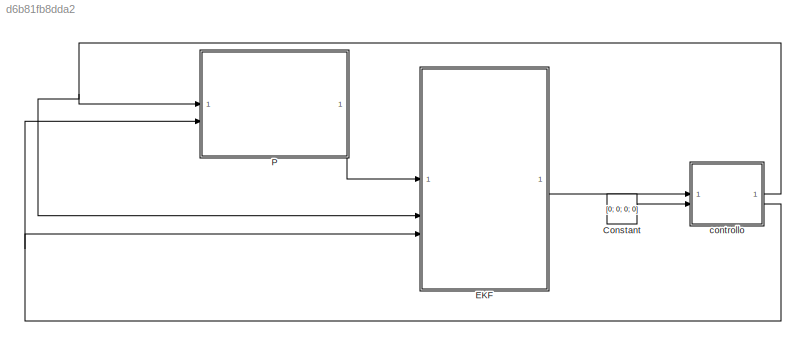
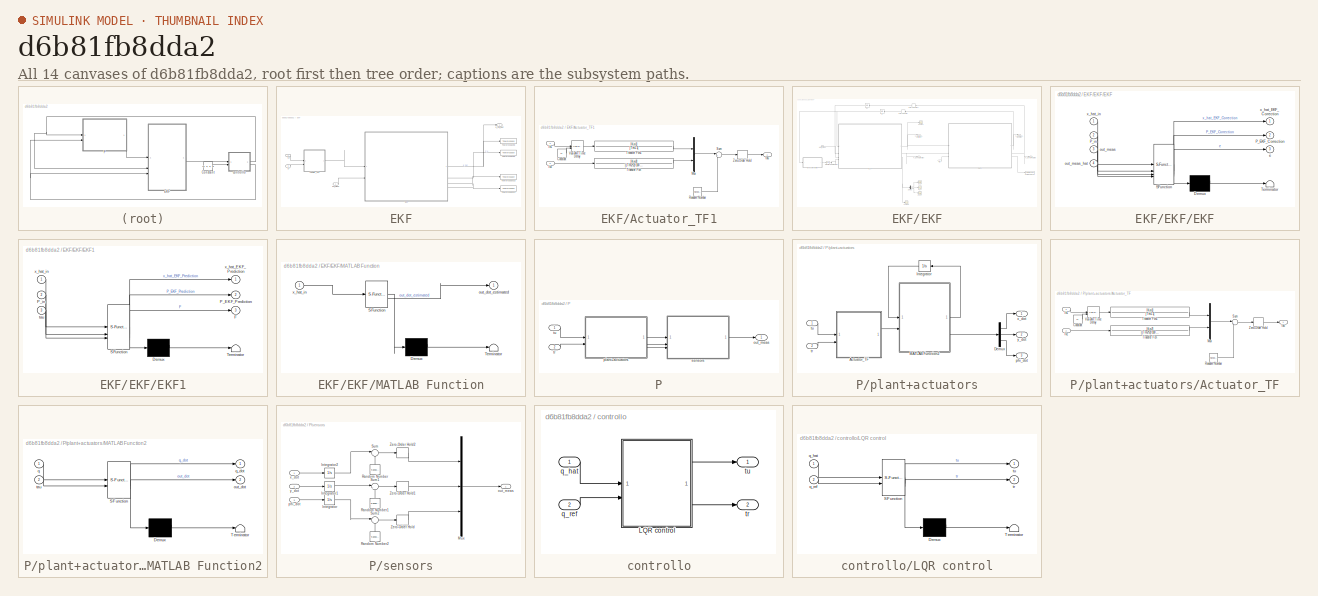
[diagram: thumbnail index - all 14 canvases of the model, root first then tree order]
MODEL slx_d6b81fb8dda2
KIND model
CONFIG AbsTol = auto
CONFIG EnableMultiTasking = off
CONFIG FixedStep = auto
CONFIG MaxStep = 1/f_s
CONFIG MinStep = auto
CONFIG RelTol = 1e-3
CONFIG SampleTimeConstraint = Unconstrained
CONFIG SolverName = VariableStepAuto
CONFIG StartTime = 0.0
CONFIG StopTime = 0.1
BLOCK [Constant] Constant
  Value = [0; 0; 0; 0]
BLOCK [SubSystem] EKF
BLOCK [SubSystem] EKF/Actuator_TF1
BLOCK [Constant] EKF/Actuator_TF1/Constant
  Value = T1
BLOCK [Inport] EKF/Actuator_TF1/In1
BLOCK [Inport] EKF/Actuator_TF1/In2
  Port = 2
BLOCK [Mux] EKF/Actuator_TF1/Mux
  DisplayOption = bar
  Inputs = 2
BLOCK [RandomNumber] EKF/Actuator_TF1/Random Number
  SampleTime = 1/f_s
  Variance = 36
BLOCK [Sum] EKF/Actuator_TF1/Sum
  Inputs = |++
BLOCK [TransferFcn] EKF/Actuator_TF1/Transfer Fcn
  Denominator = [(Tm2^2)/100 (101/100)*Tm2 1]
  Numerator = [Km2]
BLOCK [TransferFcn] EKF/Actuator_TF1/Transfer Fcn1
  Denominator = [Tm1 1]
  Numerator = [Km1]
BLOCK [VariableTransportDelay] EKF/Actuator_TF1/Variable Time Delay
  MaximumDelay = 100
  PadeOrder = 1
BLOCK [ZeroOrderHold] EKF/Actuator_TF1/Zero-Order Hold
  SampleTime = 1/f_s
BLOCK [Outport] EKF/Actuator_TF1/tau
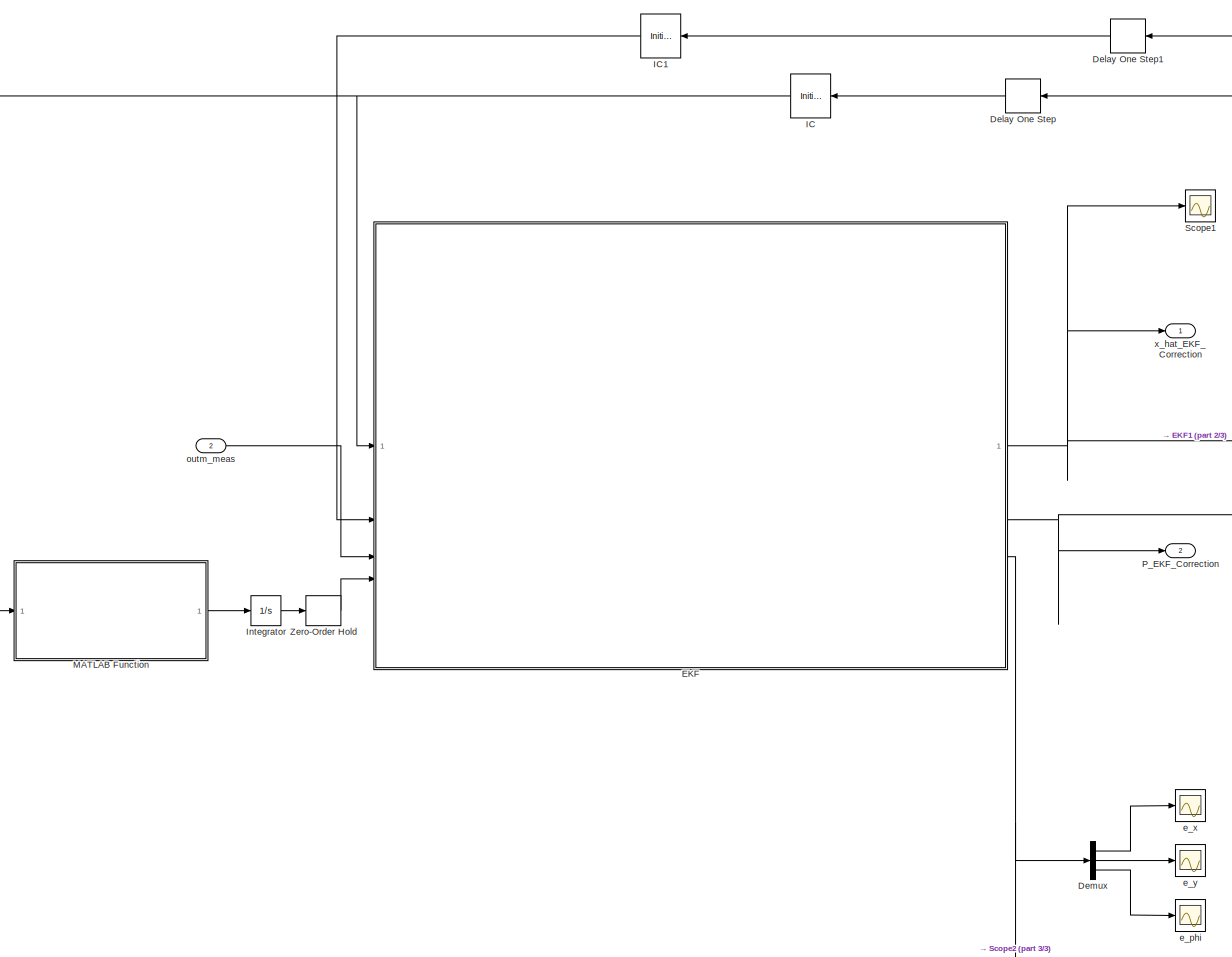
[diagram: EKF/EKF - part 1/3, left side, full height]
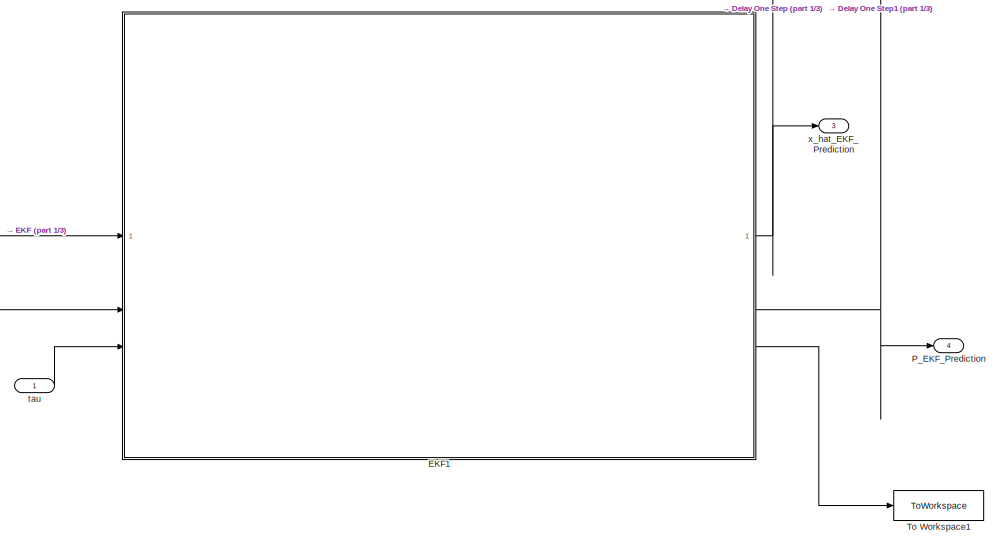
[diagram: EKF/EKF - part 2/3, middle right region]
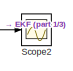
[diagram: EKF/EKF - part 3/3, bottom center region]
BLOCK [SubSystem] EKF/EKF
BLOCK [Delay] EKF/EKF/Delay One Step
  DelayLength = 1
  InputPortMap = u0
  NameLocation = top
BLOCK [Delay] EKF/EKF/Delay One Step1
  DelayLength = 1
  InputPortMap = u0
  NameLocation = top
BLOCK [Demux] EKF/EKF/Demux
  Outputs = 3
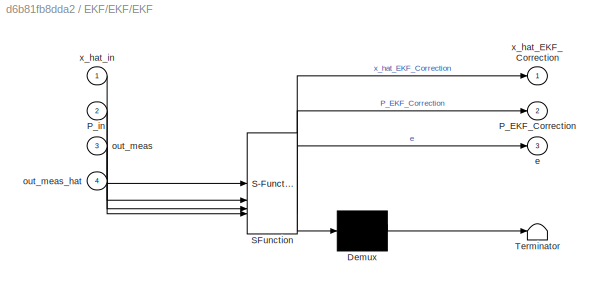
BLOCK [SubSystem] EKF/EKF/EKF
  ErrorFcn = Stateflow.Translate.translate
  PermitHierarchicalResolution = ExplicitOnly
  SFBlockType = MATLAB Function
  TreatAsAtomicUnit = on
BLOCK [Demux] EKF/EKF/EKF/ Demux 
  Outputs = 1
BLOCK [S-Function] EKF/EKF/EKF/ SFunction 
  EnableBusSupport = on
  FunctionName = sf_sfun
  Parameters = R_k,f_s,params
  PortCounts = [4 4]
  SFcnIsStateOwnerBlock = off
  SFunctionDeploymentMode = off
  Tag = Stateflow S-Function 3
BLOCK [Terminator] EKF/EKF/EKF/ Terminator 
BLOCK [Outport] EKF/EKF/EKF/P_EKF_Correction
  Port = 2
BLOCK [Inport] EKF/EKF/EKF/P_in
  Port = 2
BLOCK [Outport] EKF/EKF/EKF/e
  Port = 3
BLOCK [Inport] EKF/EKF/EKF/out_meas
  Port = 3
BLOCK [Inport] EKF/EKF/EKF/out_meas_hat
  Port = 4
BLOCK [Outport] EKF/EKF/EKF/x_hat_EKF_Correction
BLOCK [Inport] EKF/EKF/EKF/x_hat_in
BLOCK [SubSystem] EKF/EKF/EKF1
  ErrorFcn = Stateflow.Translate.translate
  PermitHierarchicalResolution = ExplicitOnly
  SFBlockType = MATLAB Function
  TreatAsAtomicUnit = on
BLOCK [Demux] EKF/EKF/EKF1/ Demux 
  Outputs = 1
BLOCK [S-Function] EKF/EKF/EKF1/ SFunction 
  EnableBusSupport = on
  FunctionName = sf_sfun
  Parameters = f_s,params
  PortCounts = [3 4]
  SFcnIsStateOwnerBlock = off
  SFunctionDeploymentMode = off
  Tag = Stateflow S-Function 6
BLOCK [Terminator] EKF/EKF/EKF1/ Terminator 
BLOCK [Outport] EKF/EKF/EKF1/F
  Port = 3
BLOCK [Outport] EKF/EKF/EKF1/P_EKF_Prediction
  Port = 2
BLOCK [Inport] EKF/EKF/EKF1/P_in
  Port = 2
BLOCK [Inport] EKF/EKF/EKF1/tau
  Port = 3
BLOCK [Outport] EKF/EKF/EKF1/x_hat_EKF_Prediction
BLOCK [Inport] EKF/EKF/EKF1/x_hat_in
BLOCK [InitialCondition] EKF/EKF/IC
  NameLocation = top
  Value = x_hat_0
BLOCK [InitialCondition] EKF/EKF/IC1
  NameLocation = top
  Value = P0
BLOCK [Integrator] EKF/EKF/Integrator
  InitialCondition = [0;0;0]
BLOCK [SubSystem] EKF/EKF/MATLAB Function
  ErrorFcn = Stateflow.Translate.translate
  PermitHierarchicalResolution = ExplicitOnly
  SFBlockType = MATLAB Function
  TreatAsAtomicUnit = on
BLOCK [Demux] EKF/EKF/MATLAB Function/ Demux 
  Outputs = 1
BLOCK [S-Function] EKF/EKF/MATLAB Function/ SFunction 
  EnableBusSupport = on
  FunctionName = sf_sfun
  PortCounts = [1 2]
  SFcnIsStateOwnerBlock = off
  SFunctionDeploymentMode = off
  Tag = Stateflow S-Function 4
BLOCK [Terminator] EKF/EKF/MATLAB Function/ Terminator 
BLOCK [Outport] EKF/EKF/MATLAB Function/out_dot_estimated
BLOCK [Inport] EKF/EKF/MATLAB Function/x_hat_in
BLOCK [Outport] EKF/EKF/P_EKF_Correction
  Port = 2
BLOCK [Outport] EKF/EKF/P_EKF_Prediction
  Port = 4
BLOCK [Scope] EKF/EKF/Scope1
  Floating = off
  NumInputPorts = 1
  ScopeSpecificationString = Simulink.scopes.TimeScopeBlockCfg('CurrentConfiguration', extmgr.ConfigurationSet(extmgr.Configuration('Core','General UI',true),extmgr.Configuration('Core','Source UI',true),extmgr.Configuration('Sources','WiredSimulink',true,'DataLoggingVariableName','ScopeData1'),extmgr.Configuration('Visuals','Time Domain',true,'SerializedDisplays',{struct('MinYLimReal','326635295748694.00000','MaxYLimReal','5...<+1659ch>
BLOCK [Scope] EKF/EKF/Scope2
  Floating = off
  NumInputPorts = 1
  ScopeSpecificationString = Simulink.scopes.TimeScopeBlockCfg('CurrentConfiguration', extmgr.ConfigurationSet(extmgr.Configuration('Core','General UI',true),extmgr.Configuration('Core','Source UI',true),extmgr.Configuration('Sources','WiredSimulink',true,'DataLoggingVariableName','ScopeData12'),extmgr.Configuration('Visuals','Time Domain',true,'SerializedDisplays',{struct('MinYLimReal','-3.89801','MaxYLimReal','0.86166','YLa...<+1443ch>
BLOCK [ToWorkspace] EKF/EKF/To Workspace1
  FixptAsFi = on
  MaxDataPoints = inf
  SampleTime = -1
  SaveFormat = Timeseries
  VariableName = F_EKF
BLOCK [ZeroOrderHold] EKF/EKF/Zero-Order Hold
  SampleTime = 1/f_s
BLOCK [Scope] EKF/EKF/e_phi
  Floating = off
  NumInputPorts = 1
  ScopeSpecificationString = Simulink.scopes.TimeScopeBlockCfg('CurrentConfiguration', extmgr.ConfigurationSet(extmgr.Configuration('Core','General UI',true),extmgr.Configuration('Core','Source UI',true),extmgr.Configuration('Sources','WiredSimulink',true,'DataLoggingVariableName','ScopeData3'),extmgr.Configuration('Visuals','Time Domain',true,'SerializedDisplays',{struct('MinYLimReal','-0.3658','MaxYLimReal','0.7634','YLabel...<+1421ch>
BLOCK [Scope] EKF/EKF/e_x
  Floating = off
  NumInputPorts = 1
  ScopeSpecificationString = Simulink.scopes.TimeScopeBlockCfg('CurrentConfiguration', extmgr.ConfigurationSet(extmgr.Configuration('Core','General UI',true),extmgr.Configuration('Core','Source UI',true),extmgr.Configuration('Sources','WiredSimulink',true,'DataLoggingVariableName','ScopeData1'),extmgr.Configuration('Visuals','Time Domain',true,'SerializedDisplays',{struct('MinYLimReal','-4.30393','MaxYLimReal','1.97776','YLab...<+1453ch>
BLOCK [Scope] EKF/EKF/e_y
  Floating = off
  NumInputPorts = 1
  ScopeSpecificationString = Simulink.scopes.TimeScopeBlockCfg('CurrentConfiguration', extmgr.ConfigurationSet(extmgr.Configuration('Core','General UI',true),extmgr.Configuration('Core','Source UI',true),extmgr.Configuration('Sources','WiredSimulink',true,'DataLoggingVariableName','ScopeData2'),extmgr.Configuration('Visuals','Time Domain',true,'SerializedDisplays',{struct('MinYLimReal','-0.59673','MaxYLimReal','0.03679','YLab...<+1453ch>
BLOCK [Inport] EKF/EKF/outm_meas
  Port = 2
BLOCK [Inport] EKF/EKF/tau
BLOCK [Outport] EKF/EKF/x_hat_EKF_Correction
BLOCK [Outport] EKF/EKF/x_hat_EKF_Prediction
  Port = 3
BLOCK [ToWorkspace] EKF/To Workspace10
  FixptAsFi = on
  MaxDataPoints = inf
  SampleTime = -1
  SaveFormat = Timeseries
  VariableName = x_hat_pred
BLOCK [ToWorkspace] EKF/To Workspace11
  FixptAsFi = on
  MaxDataPoints = inf
  SampleTime = -1
  SaveFormat = Timeseries
  VariableName = P_k_pred
BLOCK [ToWorkspace] EKF/To Workspace8
  FixptAsFi = on
  MaxDataPoints = inf
  SampleTime = -1
  SaveFormat = Timeseries
  VariableName = x_hat_computed
BLOCK [ToWorkspace] EKF/To Workspace9
  FixptAsFi = on
  MaxDataPoints = inf
  SampleTime = -1
  SaveFormat = Timeseries
  VariableName = P_k_corr
BLOCK [Inport] EKF/out_meas
BLOCK [Outport] EKF/q_hat_EKF
BLOCK [Inport] EKF/t_r
  Port = 3
BLOCK [Inport] EKF/t_u
  Port = 2
BLOCK [SubSystem] P
BLOCK [Outport] P/out_meas
BLOCK [SubSystem] P/plant+actuators
BLOCK [SubSystem] P/plant+actuators/Actuator_TF
BLOCK [Constant] P/plant+actuators/Actuator_TF/Constant
  Value = T1
BLOCK [Inport] P/plant+actuators/Actuator_TF/In1
BLOCK [Inport] P/plant+actuators/Actuator_TF/In2
  Port = 2
BLOCK [Mux] P/plant+actuators/Actuator_TF/Mux
  DisplayOption = bar
  Inputs = 2
BLOCK [RandomNumber] P/plant+actuators/Actuator_TF/Random Number
  SampleTime = 1/f_s
  Variance = 36
BLOCK [Sum] P/plant+actuators/Actuator_TF/Sum
  Inputs = |++
BLOCK [TransferFcn] P/plant+actuators/Actuator_TF/Transfer Fcn
  Denominator = [(Tm2^2)/100 (101/100)*Tm2 1]
  Numerator = [Km2]
BLOCK [TransferFcn] P/plant+actuators/Actuator_TF/Transfer Fcn1
  Denominator = [Tm1 1]
  Numerator = [Km1]
BLOCK [VariableTransportDelay] P/plant+actuators/Actuator_TF/Variable Time Delay
  MaximumDelay = 100
  PadeOrder = 1
BLOCK [ZeroOrderHold] P/plant+actuators/Actuator_TF/Zero-Order Hold
  SampleTime = 1/f_s
BLOCK [Outport] P/plant+actuators/Actuator_TF/tau
BLOCK [Demux] P/plant+actuators/Demux
  Outputs = 3
BLOCK [Integrator] P/plant+actuators/Integrator
  InitialCondition = [u_0, v_0, r_0, phi_0]'
  NameLocation = top
BLOCK [SubSystem] P/plant+actuators/MATLAB Function2
  ErrorFcn = Stateflow.Translate.translate
  PermitHierarchicalResolution = ExplicitOnly
  SFBlockType = MATLAB Function
  TreatAsAtomicUnit = on
BLOCK [Demux] P/plant+actuators/MATLAB Function2/ Demux 
  Outputs = 1
BLOCK [S-Function] P/plant+actuators/MATLAB Function2/ SFunction 
  EnableBusSupport = on
  FunctionName = sf_sfun
  Parameters = params
  PortCounts = [2 3]
  SFcnIsStateOwnerBlock = off
  SFunctionDeploymentMode = off
  Tag = Stateflow S-Function 8
BLOCK [Terminator] P/plant+actuators/MATLAB Function2/ Terminator 
BLOCK [Outport] P/plant+actuators/MATLAB Function2/out_dot
  Port = 2
BLOCK [Inport] P/plant+actuators/MATLAB Function2/q
BLOCK [Outport] P/plant+actuators/MATLAB Function2/q_dot
BLOCK [Inport] P/plant+actuators/MATLAB Function2/tau
  Port = 2
BLOCK [Outport] P/plant+actuators/phi_dot
  Port = 3
BLOCK [Inport] P/plant+actuators/tr
  Port = 2
BLOCK [Inport] P/plant+actuators/tu
BLOCK [Outport] P/plant+actuators/x_dot
BLOCK [Outport] P/plant+actuators/y_dot
  Port = 2
BLOCK [SubSystem] P/sensors
BLOCK [Integrator] P/sensors/Integrator
BLOCK [Integrator] P/sensors/Integrator1
BLOCK [Integrator] P/sensors/Integrator2
BLOCK [Mux] P/sensors/Mux
  DisplayOption = bar
  Inputs = 3
BLOCK [RandomNumber] P/sensors/Random Number
  NameLocation = right
  SampleTime = 0.1
  Variance = gps_var
BLOCK [RandomNumber] P/sensors/Random Number1
  NameLocation = right
  SampleTime = 0.1
  Variance = gps_var
BLOCK [RandomNumber] P/sensors/Random Number2
  NameLocation = right
  SampleTime = 0.1
  Variance = heading_var
BLOCK [Sum] P/sensors/Sum
  Inputs = |++
BLOCK [Sum] P/sensors/Sum1
  Inputs = |++
BLOCK [Sum] P/sensors/Sum2
  Inputs = |++
BLOCK [ZeroOrderHold] P/sensors/Zero-Order Hold
  SampleTime = 1/f_s
BLOCK [ZeroOrderHold] P/sensors/Zero-Order Hold1
  SampleTime = 1/f_s
BLOCK [ZeroOrderHold] P/sensors/Zero-Order Hold2
  SampleTime = 1/f_s
BLOCK [Outport] P/sensors/out_meas
BLOCK [Inport] P/sensors/phi_dot
  Port = 3
BLOCK [Inport] P/sensors/x_dot
BLOCK [Inport] P/sensors/y_dot
  Port = 2
BLOCK [Inport] P/tr
  Port = 2
BLOCK [Inport] P/tu
BLOCK [SubSystem] controllo
BLOCK [SubSystem] controllo/LQR control
  ErrorFcn = Stateflow.Translate.translate
  PermitHierarchicalResolution = ExplicitOnly
  SFBlockType = MATLAB Function
  TreatAsAtomicUnit = on
BLOCK [Demux] controllo/LQR control/ Demux 
  Outputs = 1
BLOCK [S-Function] controllo/LQR control/ SFunction 
  EnableBusSupport = on
  FunctionName = sf_sfun
  Parameters = params
  PortCounts = [2 3]
  SFcnIsStateOwnerBlock = off
  SFunctionDeploymentMode = off
  Tag = Stateflow S-Function 5
BLOCK [Terminator] controllo/LQR control/ Terminator 
BLOCK [Inport] controllo/LQR control/q_hat
BLOCK [Inport] controllo/LQR control/q_ref
  Port = 2
BLOCK [Outport] controllo/LQR control/tr
  Port = 2
BLOCK [Outport] controllo/LQR control/tu
BLOCK [Inport] controllo/q_hat
BLOCK [Inport] controllo/q_ref
  Port = 2
BLOCK [Outport] controllo/tr
  Port = 2
BLOCK [Outport] controllo/tu
LINE Constant:1 -> controllo:2
LINE EKF/Actuator_TF1/Constant:1 -> EKF/Actuator_TF1/Variable Time Delay:2
LINE EKF/Actuator_TF1/In1:1 -> EKF/Actuator_TF1/Variable Time Delay:1
LINE EKF/Actuator_TF1/In2:1 -> EKF/Actuator_TF1/Transfer Fcn:1
LINE EKF/Actuator_TF1/Mux:1 -> EKF/Actuator_TF1/Sum:1
LINE EKF/Actuator_TF1/Random Number:1 -> EKF/Actuator_TF1/Sum:2
LINE EKF/Actuator_TF1/Sum:1 -> EKF/Actuator_TF1/Zero-Order Hold:1
LINE EKF/Actuator_TF1/Transfer Fcn1:1 -> EKF/Actuator_TF1/Mux:1
LINE EKF/Actuator_TF1/Transfer Fcn:1 -> EKF/Actuator_TF1/Mux:2
LINE EKF/Actuator_TF1/Variable Time Delay:1 -> EKF/Actuator_TF1/Transfer Fcn1:1
LINE EKF/Actuator_TF1/Zero-Order Hold:1 -> EKF/Actuator_TF1/tau:1
LINE EKF/Actuator_TF1:1 -> EKF/EKF:1
LINE EKF/EKF/Delay One Step1:1 -> EKF/EKF/IC1:1
LINE EKF/EKF/Delay One Step:1 -> EKF/EKF/IC:1
LINE EKF/EKF/Demux:1 -> EKF/EKF/e_x:1
LINE EKF/EKF/Demux:2 -> EKF/EKF/e_y:1
LINE EKF/EKF/Demux:3 -> EKF/EKF/e_phi:1
NET EKF/EKF/EKF1:1 -> EKF/EKF/Delay One Step:1, EKF/EKF/x_hat_EKF_Prediction:1
NET EKF/EKF/EKF1:2 -> EKF/EKF/Delay One Step1:1, EKF/EKF/P_EKF_Prediction:1
LINE EKF/EKF/EKF1:3 -> EKF/EKF/To Workspace1:1
NET EKF/EKF/EKF:1 -> EKF/EKF/EKF1:1, EKF/EKF/Scope1:1, EKF/EKF/x_hat_EKF_Correction:1
NET EKF/EKF/EKF:2 -> EKF/EKF/EKF1:2, EKF/EKF/P_EKF_Correction:1
NET EKF/EKF/EKF:3 -> EKF/EKF/Demux:1, EKF/EKF/Scope2:1
LINE EKF/EKF/IC1:1 -> EKF/EKF/EKF:2
NET EKF/EKF/IC:1 -> EKF/EKF/EKF:1, EKF/EKF/MATLAB Function:1
LINE EKF/EKF/Integrator:1 -> EKF/EKF/Zero-Order Hold:1
LINE EKF/EKF/MATLAB Function:1 -> EKF/EKF/Integrator:1
LINE EKF/EKF/Zero-Order Hold:1 -> EKF/EKF/EKF:4
LINE EKF/EKF/outm_meas:1 -> EKF/EKF/EKF:3
LINE EKF/EKF/tau:1 -> EKF/EKF/EKF1:3
NET EKF/EKF:1 -> EKF/To Workspace8:1, EKF/q_hat_EKF:1
LINE EKF/EKF:2 -> EKF/To Workspace9:1
LINE EKF/EKF:3 -> EKF/To Workspace10:1
LINE EKF/EKF:4 -> EKF/To Workspace11:1
LINE EKF/out_meas:1 -> EKF/EKF:2
LINE EKF/t_r:1 -> EKF/Actuator_TF1:2
LINE EKF/t_u:1 -> EKF/Actuator_TF1:1
LINE EKF:1 -> controllo:1
LINE P/plant+actuators/Actuator_TF/Constant:1 -> P/plant+actuators/Actuator_TF/Variable Time Delay:2
LINE P/plant+actuators/Actuator_TF/In1:1 -> P/plant+actuators/Actuator_TF/Variable Time Delay:1
LINE P/plant+actuators/Actuator_TF/In2:1 -> P/plant+actuators/Actuator_TF/Transfer Fcn:1
LINE P/plant+actuators/Actuator_TF/Mux:1 -> P/plant+actuators/Actuator_TF/Sum:1
LINE P/plant+actuators/Actuator_TF/Random Number:1 -> P/plant+actuators/Actuator_TF/Sum:2
LINE P/plant+actuators/Actuator_TF/Sum:1 -> P/plant+actuators/Actuator_TF/Zero-Order Hold:1
LINE P/plant+actuators/Actuator_TF/Transfer Fcn1:1 -> P/plant+actuators/Actuator_TF/Mux:1
LINE P/plant+actuators/Actuator_TF/Transfer Fcn:1 -> P/plant+actuators/Actuator_TF/Mux:2
LINE P/plant+actuators/Actuator_TF/Variable Time Delay:1 -> P/plant+actuators/Actuator_TF/Transfer Fcn1:1
LINE P/plant+actuators/Actuator_TF/Zero-Order Hold:1 -> P/plant+actuators/Actuator_TF/tau:1
LINE P/plant+actuators/Actuator_TF:1 -> P/plant+actuators/MATLAB Function2:2
LINE P/plant+actuators/Demux:1 -> P/plant+actuators/x_dot:1
LINE P/plant+actuators/Demux:2 -> P/plant+actuators/y_dot:1
LINE P/plant+actuators/Demux:3 -> P/plant+actuators/phi_dot:1
LINE P/plant+actuators/Integrator:1 -> P/plant+actuators/MATLAB Function2:1
LINE P/plant+actuators/MATLAB Function2:1 -> P/plant+actuators/Integrator:1
LINE P/plant+actuators/MATLAB Function2:2 -> P/plant+actuators/Demux:1
LINE P/plant+actuators/tr:1 -> P/plant+actuators/Actuator_TF:2
LINE P/plant+actuators/tu:1 -> P/plant+actuators/Actuator_TF:1
LINE P/plant+actuators:1 -> P/sensors:1
LINE P/plant+actuators:2 -> P/sensors:2
LINE P/plant+actuators:3 -> P/sensors:3
LINE P/sensors/Integrator1:1 -> P/sensors/Sum1:1
LINE P/sensors/Integrator2:1 -> P/sensors/Sum:1
LINE P/sensors/Integrator:1 -> P/sensors/Sum2:1
LINE P/sensors/Mux:1 -> P/sensors/out_meas:1
LINE P/sensors/Random Number1:1 -> P/sensors/Sum1:2
LINE P/sensors/Random Number2:1 -> P/sensors/Sum2:2
LINE P/sensors/Random Number:1 -> P/sensors/Sum:2
LINE P/sensors/Sum1:1 -> P/sensors/Zero-Order Hold1:1
LINE P/sensors/Sum2:1 -> P/sensors/Zero-Order Hold:1
LINE P/sensors/Sum:1 -> P/sensors/Zero-Order Hold2:1
LINE P/sensors/Zero-Order Hold1:1 -> P/sensors/Mux:2
LINE P/sensors/Zero-Order Hold2:1 -> P/sensors/Mux:1
LINE P/sensors/Zero-Order Hold:1 -> P/sensors/Mux:3
LINE P/sensors/phi_dot:1 -> P/sensors/Integrator:1
LINE P/sensors/x_dot:1 -> P/sensors/Integrator2:1
LINE P/sensors/y_dot:1 -> P/sensors/Integrator1:1
LINE P/sensors:1 -> P/out_meas:1
LINE P/tr:1 -> P/plant+actuators:2
LINE P/tu:1 -> P/plant+actuators:1
LINE P:1 -> EKF:1
LINE controllo/LQR control:1 -> controllo/tu:1
LINE controllo/LQR control:2 -> controllo/tr:1
LINE controllo/q_hat:1 -> controllo/LQR control:1
LINE controllo/q_ref:1 -> controllo/LQR control:2
NET controllo:1 -> EKF:2, P:1
NET controllo:2 -> EKF:3, P:2
note: NET lines group one-source signal fan-out (src -> all destinations, sorted); 1:1 wires keep LINE
CHART EKF/EKF/EKF states=1 transitions=1
  STATE_LABEL 'eML_blk_kernel()'
  STATE_LABEL 'SCRIPT:\nfunction [ x_hat_EKF_Correction, P_EKF_Correction, e]  = Correzione (x_hat_in, P_in, params, out_meas, out_meas_hat, R_k, f_s)\n\n% parametri = [m, c_a, J, L, l, h, r, g];\n\nm11 = params(1);\nm22 = params(2);\nm33 = params(3);\n\nd11 = params(4);\nd22 = params(5);\nd33 = params(6);\n\ndt = 1/f_s;\n\n\nx_hat_EKF_Correction = x_hat_in;\n\n% P = [init.q_std_dev(1)^2 0 0 0;...                        % incerte...<+1556ch>'
CHART EKF/EKF/MATLAB Function states=1 transitions=1
  STATE_LABEL 'eML_blk_kernel()'
  STATE_LABEL 'SCRIPT:\nfunction out_dot_estimated = Uscita_Stimata(x_hat_in)\n    \n    u = x_hat_in(1);\n    v = x_hat_in(2);\n    r = x_hat_in(3);\n    phi = x_hat_in(4);\n    \n    %% Output\n    % x_dot = u*cos(phi) - v*sin(phi);\n    % y_dot = u*sin(phi) + v*cos(phi);\n    % phi_dot = r;\n\n    C = [cos(phi),  -sin(phi),  0,  -u*sin(phi) - v*cos(phi);\n         sin(phi),   cos(phi),  0,   u*cos(phi) - v*sin(phi);\n      ...<+89ch>'
CHART controllo/LQR control states=1 transitions=1
  STATE_LABEL 'eML_blk_kernel()'
  STATE_LABEL 'SCRIPT:\nfunction [tu, tr] = fcn(q_hat, q_ref, params)\n\n    coder.extrinsic("icare")\n\n    m11 = params(1);\n    m22 = params(2);\n    m33 = params(3);\n\n    d11 = params(4);\n    d22 = params(5);\n    d33 = params(6);\n\n    u = q_hat(1);\n    v = q_hat(2);\n    r = q_hat(3);\n\n    A = [-(d11/m11),            (m22/m11)*r,            (m22/m11)*v,        0;\n         -(m11/m22)*r,          -(d22/m22),          ...<+534ch>'
CHART EKF/EKF/EKF1 states=1 transitions=1
  STATE_LABEL 'eML_blk_kernel()'
  STATE_LABEL 'SCRIPT:\nfunction [x_hat_EKF_Prediction, P_EKF_Prediction,F] = Predizione (x_hat_in, P_in, params, tau, f_s)\n\n% parametri = [m, c_a, J, L, l, h, r, g];\n\nm11 = params(1);\nm22 = params(2);\nm33 = params(3);\n\nd11 = params(4);\nd22 = params(5);\nd33 = params(6);\n\ndt = 1/f_s;\n\n\nx_hat_EKF_Prediction = x_hat_in;\n\n% P = [init.q_std_dev(1)^2 0 0 0;...                                                    % incert...<+1224ch>'
CHART P/plant+actuators/MATLAB Function2 states=1 transitions=1
  STATE_LABEL 'eML_blk_kernel()'
  STATE_LABEL 'SCRIPT:\nfunction [q_dot, out_dot]  = system_dynamic(q, tau, params)\n    \n    m11 = params(1);\n    m22 = params(2);\n    m33 = params(3);\n\n    d11 = params(4);\n    d22 = params(5);\n    d33 = params(6);\n\n    u = q(1);\n    v = q(2);\n    r = q(3);\n    phi = q(4);\n    \n    % u_dot = (m22/m11)*v*r - (d11/m11)*u + (1/m11)*tau_u;\n    % v_dot = -(m11/m22)*u*r - (d22/m22)*v;\n    % r_dot = ((m11 - m22)/m33)*u...<+883ch>'
CHART  states=0 transitions=0
CHART  states=0 transitions=0
CHART  states=0 transitions=0
CHART  states=0 transitions=0
CHART  states=0 transitions=0
